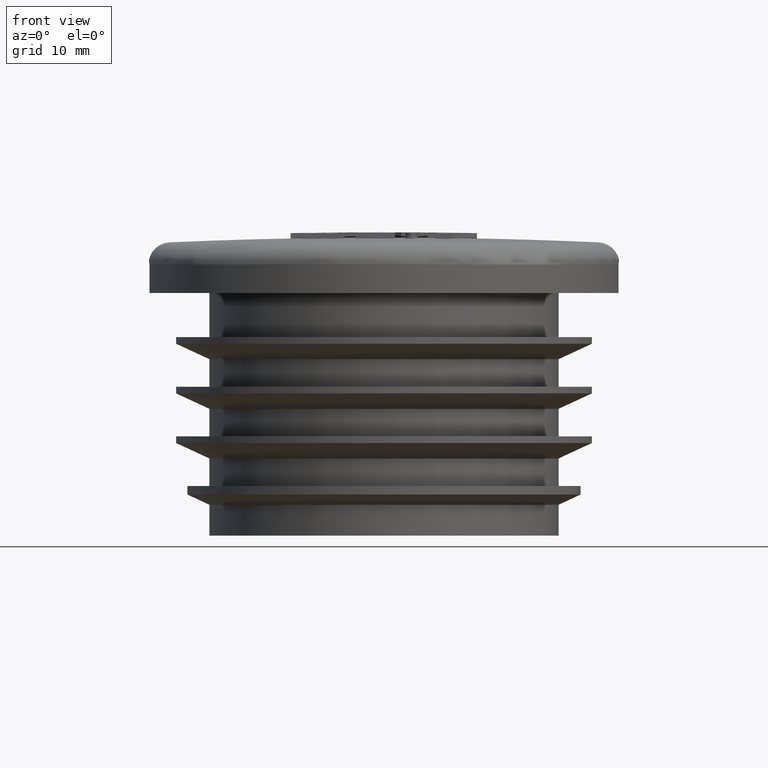
[diagram: clean part render]
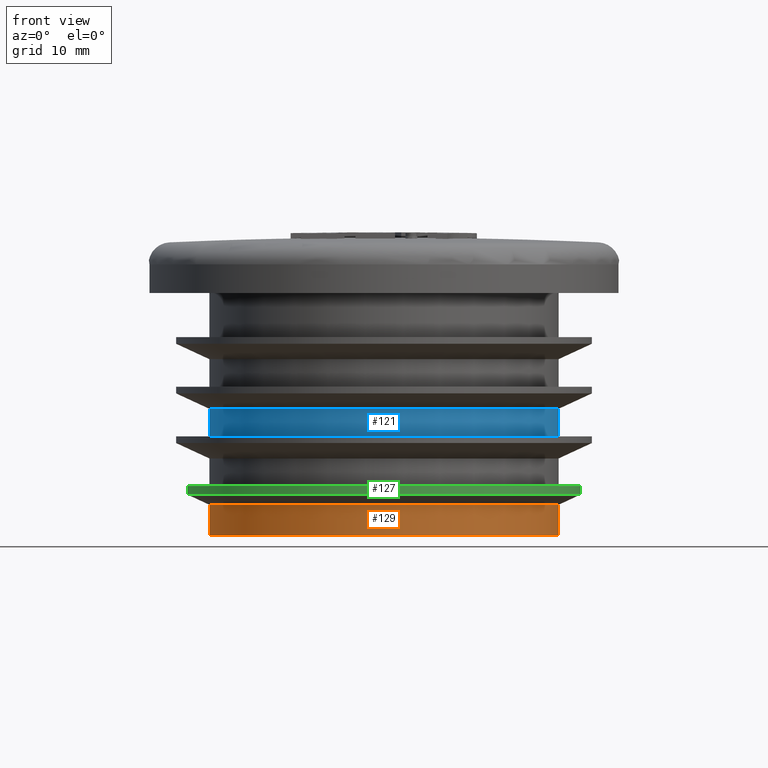
[diagram: same view with three faces highlighted in distinct colors, each labeled with its STEP entity id]
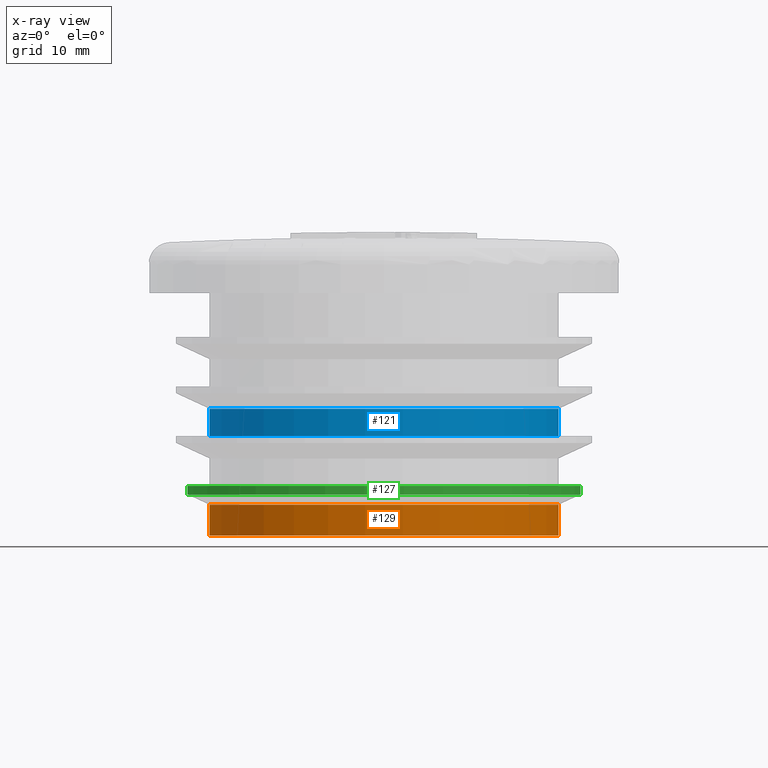
[diagram: x-ray of the same camera — body ghosted, the three highlighted faces saturated]
A machine part, front view with three faces highlighted in distinct colors.
The next image is the same camera in x-ray (body ghosted, the three faces saturated) — at least one of them is partly hidden behind the body in this view.
Their STEP definitions:

[orange] entity #129 — the highlighted cylindrical surface (bore or boss wall) has radius 15.85 mm, axis along (0, 0, 1).
#129 = ADVANCED_FACE( '', ( #306, #307 ), #308, .T. );
#306 = FACE_OUTER_BOUND( '', #694, .T. );
#307 = FACE_OUTER_BOUND( '', #695, .T. );
#308 = CYLINDRICAL_SURFACE( '', #696, 15.8500000000000 );
#694 = EDGE_LOOP( '', ( #1283 ) );
#695 = EDGE_LOOP( '', ( #1284 ) );
#696 = AXIS2_PLACEMENT_3D( '', #1285, #1286, #1287 );
#1283 = ORIENTED_EDGE( '', *, *, #1663, .F. );
#1284 = ORIENTED_EDGE( '', *, *, #1662, .T. );
#1285 = CARTESIAN_POINT( '', ( 0.000000000000000, 0.000000000000000, 22.0000000000000 ) );
#1286 = DIRECTION( '', ( 0.000000000000000, 6.12303176911189E-017, 1.00000000000000 ) );
#1287 = DIRECTION( '', ( 0.000000000000000, 1.00000000000000, -6.12303176911189E-017 ) );
#1662 = EDGE_CURVE( '', #1961, #1961, #1962, .T. );
#1663 = EDGE_CURVE( '', #1963, #1963, #1964, .T. );
#1961 = VERTEX_POINT( '', #2951 );
#1962 = CIRCLE( '', #2952, 15.8500000000000 );
#1963 = VERTEX_POINT( '', #2953 );
#1964 = CIRCLE( '', #2954, 15.8500000000000 );
#2951 = CARTESIAN_POINT( '', ( 0.000000000000000, 15.8500000000000, 2.79999999999999 ) );
#2952 = AXIS2_PLACEMENT_3D( '', #3255, #3256, #3257 );
#2953 = CARTESIAN_POINT( '', ( 0.000000000000000, 15.8500000000000, 5.96839336850299E-015 ) );
#2954 = AXIS2_PLACEMENT_3D( '', #3258, #3259, #3260 );
#3255 = CARTESIAN_POINT( '', ( 0.000000000000000, -1.17562209966948E-015, 2.79999999999999 ) );
#3256 = DIRECTION( '', ( 0.000000000000000, -6.12303176911189E-017, -1.00000000000000 ) );
#3257 = DIRECTION( '', ( 0.000000000000000, 1.00000000000000, -6.12303176911189E-017 ) );
#3258 = CARTESIAN_POINT( '', ( 0.000000000000000, -1.34706698920461E-015, 6.93889390390723E-015 ) );
#3259 = DIRECTION( '', ( 0.000000000000000, -6.12303176911189E-017, -1.00000000000000 ) );
#3260 = DIRECTION( '', ( 0.000000000000000, 1.00000000000000, -6.12303176911189E-017 ) );

[blue] entity #121 — the highlighted cylindrical surface (bore or boss wall) has radius 15.85 mm, axis along (0, 0, 1).
#121 = ADVANCED_FACE( '', ( #282, #283 ), #284, .T. );
#282 = FACE_OUTER_BOUND( '', #670, .T. );
#283 = FACE_OUTER_BOUND( '', #671, .T. );
#284 = CYLINDRICAL_SURFACE( '', #672, 15.8500000000000 );
#670 = EDGE_LOOP( '', ( #1243 ) );
#671 = EDGE_LOOP( '', ( #1244 ) );
#672 = AXIS2_PLACEMENT_3D( '', #1245, #1246, #1247 );
#1243 = ORIENTED_EDGE( '', *, *, #1655, .F. );
#1244 = ORIENTED_EDGE( '', *, *, #1654, .T. );
#1245 = CARTESIAN_POINT( '', ( 0.000000000000000, 0.000000000000000, 22.0000000000000 ) );
#1246 = DIRECTION( '', ( 0.000000000000000, 6.12303176911189E-017, 1.00000000000000 ) );
#1247 = DIRECTION( '', ( 0.000000000000000, 1.00000000000000, -6.12303176911189E-017 ) );
#1654 = EDGE_CURVE( '', #1945, #1945, #1946, .T. );
#1655 = EDGE_CURVE( '', #1947, #1947, #1948, .T. );
#1945 = VERTEX_POINT( '', #2935 );
#1946 = CIRCLE( '', #2936, 15.8500000000000 );
#1947 = VERTEX_POINT( '', #2937 );
#1948 = CIRCLE( '', #2938, 15.8500000000000 );
#2935 = CARTESIAN_POINT( '', ( 0.000000000000000, 15.8500000000000, 11.5000000000000 ) );
#2936 = AXIS2_PLACEMENT_3D( '', #3231, #3232, #3233 );
#2937 = CARTESIAN_POINT( '', ( 0.000000000000000, 15.8500000000000, 9.00000000000000 ) );
#2938 = AXIS2_PLACEMENT_3D( '', #3234, #3235, #3236 );
#3231 = CARTESIAN_POINT( '', ( 0.000000000000000, -6.42918335756749E-016, 11.5000000000000 ) );
#3232 = DIRECTION( '', ( 0.000000000000000, -6.12303176911189E-017, -1.00000000000000 ) );
#3233 = DIRECTION( '', ( 0.000000000000000, 1.00000000000000, -6.12303176911189E-017 ) );
#3234 = CARTESIAN_POINT( '', ( 0.000000000000000, -7.95994129984545E-016, 9.00000000000000 ) );
#3235 = DIRECTION( '', ( 0.000000000000000, -6.12303176911189E-017, -1.00000000000000 ) );
#3236 = DIRECTION( '', ( 0.000000000000000, 1.00000000000000, -6.12303176911189E-017 ) );

[green] entity #127 — the highlighted cylindrical surface (bore or boss wall) has radius 17.85 mm, axis along (0, 0, 1).
#127 = ADVANCED_FACE( '', ( #300, #301 ), #302, .T. );
#300 = FACE_OUTER_BOUND( '', #688, .T. );
#301 = FACE_OUTER_BOUND( '', #689, .T. );
#302 = CYLINDRICAL_SURFACE( '', #690, 17.8500000000000 );
#688 = EDGE_LOOP( '', ( #1273 ) );
#689 = EDGE_LOOP( '', ( #1274 ) );
#690 = AXIS2_PLACEMENT_3D( '', #1275, #1276, #1277 );
#1273 = ORIENTED_EDGE( '', *, *, #1661, .F. );
#1274 = ORIENTED_EDGE( '', *, *, #1660, .T. );
#1275 = CARTESIAN_POINT( '', ( 0.000000000000000, 0.000000000000000, 22.0000000000000 ) );
#1276 = DIRECTION( '', ( 0.000000000000000, 6.12303176911189E-017, 1.00000000000000 ) );
#1277 = DIRECTION( '', ( 0.000000000000000, 1.00000000000000, -6.12303176911189E-017 ) );
#1660 = EDGE_CURVE( '', #1957, #1957, #1958, .T. );
#1661 = EDGE_CURVE( '', #1959, #1959, #1960, .T. );
#1957 = VERTEX_POINT( '', #2947 );
#1958 = CIRCLE( '', #2948, 17.8500000000000 );
#1959 = VERTEX_POINT( '', #2949 );
#1960 = CIRCLE( '', #2950, 17.8500000000000 );
#2947 = CARTESIAN_POINT( '', ( 0.000000000000000, 17.8500000000000, 4.50000000000000 ) );
#2948 = AXIS2_PLACEMENT_3D( '', #3249, #3250, #3251 );
#2949 = CARTESIAN_POINT( '', ( 0.000000000000000, 17.8500000000000, 3.73261531631000 ) );
#2950 = AXIS2_PLACEMENT_3D( '', #3252, #3253, #3254 );
#3249 = CARTESIAN_POINT( '', ( 0.000000000000000, -1.07153055959458E-015, 4.50000000000000 ) );
#3250 = DIRECTION( '', ( 0.000000000000000, -6.12303176911189E-017, -1.00000000000000 ) );
#3251 = DIRECTION( '', ( 0.000000000000000, 1.00000000000000, -6.12303176911189E-017 ) );
#3252 = CARTESIAN_POINT( '', ( 0.000000000000000, -1.11851776756822E-015, 3.73261531631000 ) );
#3253 = DIRECTION( '', ( 0.000000000000000, -6.12303176911189E-017, -1.00000000000000 ) );
#3254 = DIRECTION( '', ( 0.000000000000000, 1.00000000000000, -6.12303176911189E-017 ) );